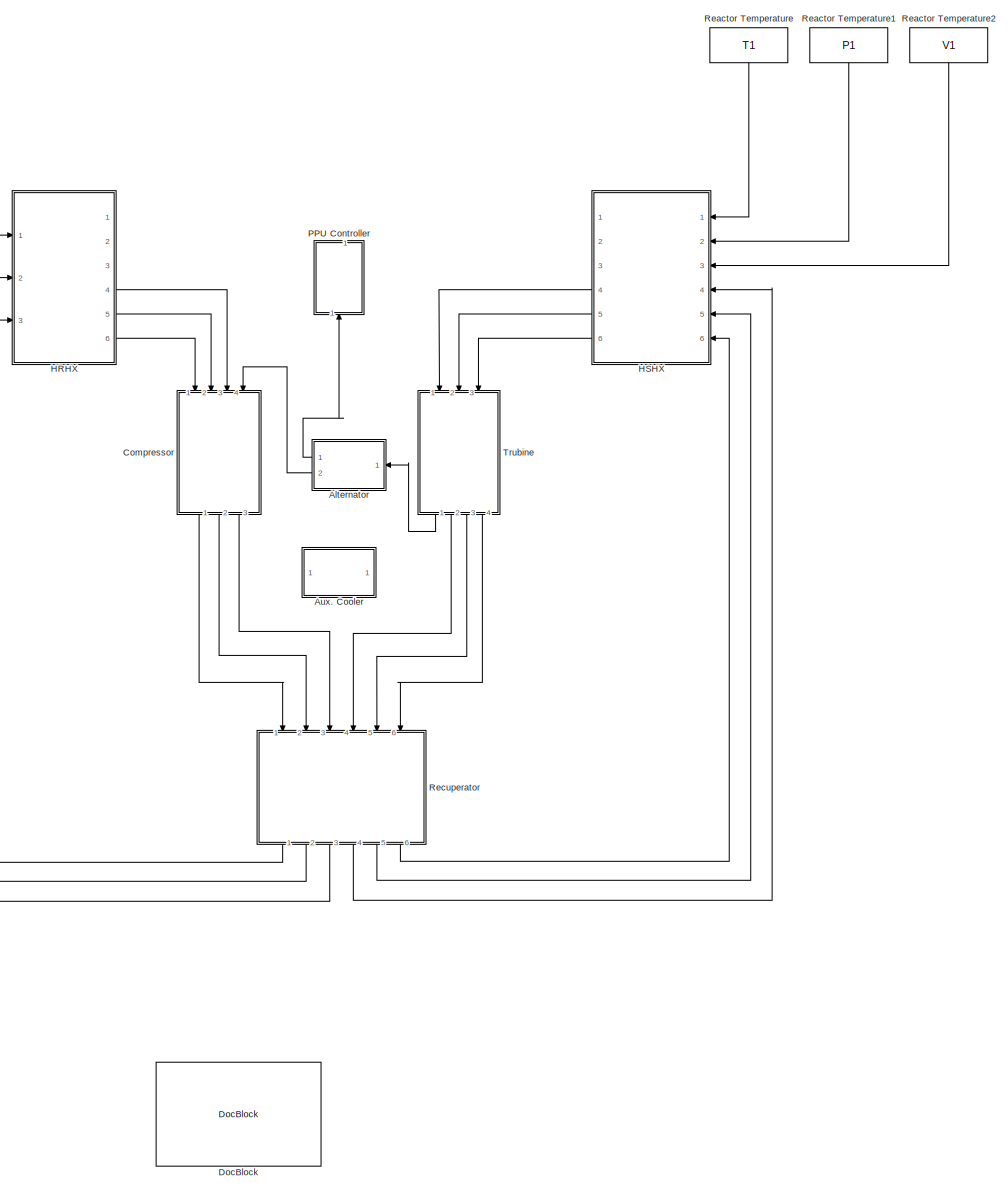
[diagram: root canvas - part 1/1, most of the canvas]
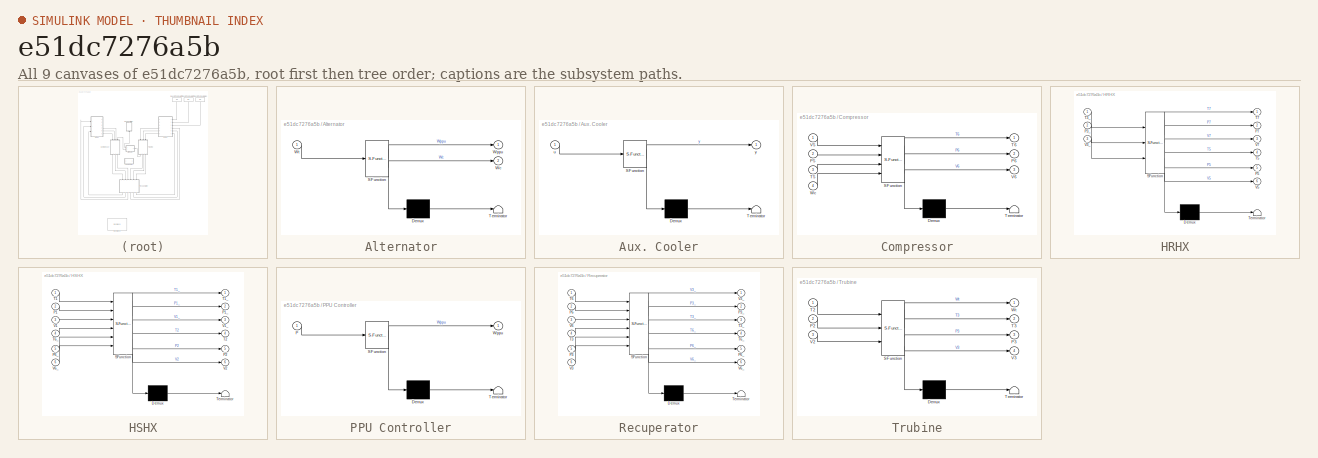
[diagram: thumbnail index - all 9 canvases of the model, root first then tree order]
MODEL slx_e51dc7276a5b
KIND model
CONFIG AbsTol = auto
CONFIG EnableMultiTasking = off
CONFIG FixedStep = auto
CONFIG MaxStep = auto
CONFIG MinStep = auto
CONFIG RelTol = 1e-3
CONFIG SampleTimeConstraint = Unconstrained
CONFIG Solver = VariableStepAuto
CONFIG SolverName = VariableStepAuto
CONFIG StartTime = 0.0
CONFIG StopTime = 10.0
BLOCK [SubSystem] Alternator
  ErrorFcn = Stateflow.Translate.translate
  PermitHierarchicalResolution = ExplicitOnly
  Ports = [1, 2]
  RequestExecContextInheritance = off
  SFBlockType = MATLAB Function
  TreatAsAtomicUnit = on
BLOCK [Demux] Alternator/ Demux 
  Outputs = 1
  Ports = [1, 1]
BLOCK [S-Function] Alternator/ SFunction 
  EnableBusSupport = on
  FunctionName = sf_sfun
  PortCounts = [1 3]
  Ports = [1, 3]
  SFcnIsStateOwnerBlock = off
  SFunctionDeploymentMode = off
  Tag = Stateflow S-Function 3
BLOCK [Terminator] Alternator/ Terminator 
BLOCK [Outport] Alternator/Wc
  IconDisplay = Port number
  Port = 2
BLOCK [Outport] Alternator/Wppu
  IconDisplay = Port number
BLOCK [Inport] Alternator/Wt
  IconDisplay = Port number
BLOCK [SubSystem] Aux. Cooler
  ErrorFcn = Stateflow.Translate.translate
  PermitHierarchicalResolution = ExplicitOnly
  Ports = [1, 1]
  RequestExecContextInheritance = off
  SFBlockType = MATLAB Function
  TreatAsAtomicUnit = on
BLOCK [Demux] Aux. Cooler/ Demux 
  Outputs = 1
  Ports = [1, 1]
BLOCK [S-Function] Aux. Cooler/ SFunction 
  EnableBusSupport = on
  FunctionName = sf_sfun
  PortCounts = [1 2]
  Ports = [1, 2]
  SFcnIsStateOwnerBlock = off
  SFunctionDeploymentMode = off
  Tag = Stateflow S-Function 4
BLOCK [Terminator] Aux. Cooler/ Terminator 
BLOCK [Inport] Aux. Cooler/u
  IconDisplay = Port number
BLOCK [Outport] Aux. Cooler/y
  IconDisplay = Port number
BLOCK [SubSystem] Compressor
  ErrorFcn = Stateflow.Translate.translate
  PermitHierarchicalResolution = ExplicitOnly
  Ports = [4, 3]
  RequestExecContextInheritance = off
  SFBlockType = MATLAB Function
  TreatAsAtomicUnit = on
BLOCK [Demux] Compressor/ Demux 
  Outputs = 1
  Ports = [1, 1]
BLOCK [S-Function] Compressor/ SFunction 
  EnableBusSupport = on
  FunctionName = sf_sfun
  PortCounts = [4 4]
  Ports = [4, 4]
  SFcnIsStateOwnerBlock = off
  SFunctionDeploymentMode = off
  Tag = Stateflow S-Function 1
BLOCK [Terminator] Compressor/ Terminator 
BLOCK [Inport] Compressor/P5
  IconDisplay = Port number
  Port = 2
BLOCK [Outport] Compressor/P6
  IconDisplay = Port number
  Port = 2
BLOCK [Inport] Compressor/T5
  IconDisplay = Port number
  Port = 3
BLOCK [Outport] Compressor/T6
  IconDisplay = Port number
BLOCK [Inport] Compressor/V5
  IconDisplay = Port number
BLOCK [Outport] Compressor/V6
  IconDisplay = Port number
  Port = 3
BLOCK [Inport] Compressor/Wc
  IconDisplay = Port number
  Port = 4
BLOCK [Reference] DocBlock  REF=simulink/Model-Wide
Utilities/DocBlock
  Description = HSHX : 1 (8) --> 2\nTurbine : 2 --> 3\nRecuperator : 3 (7) --> 4 (8)\nHRHX : 4 --> 5 (6)\nCompressor : 5 --> 7
  Ports = []
  SourceBlock = simulink/Model-Wide\nUtilities/DocBlock
  SourceProductBaseCode = SL
  SourceProductName = Simulink
  SourceType = DocBlock
  Tag = HSHX : 1 (8) --> 2\nTurbine : 2 --> 3\nRecuperator : 3 (7) --> 4 (8)\nHRHX : 4 --> 5 (6)\nCompressor : 5 --> 7
  UserDataPersistent = on
BLOCK [SubSystem] HRHX
  ErrorFcn = Stateflow.Translate.translate
  PermitHierarchicalResolution = ExplicitOnly
  Ports = [3, 6]
  RequestExecContextInheritance = off
  SFBlockType = MATLAB Function
  TreatAsAtomicUnit = on
BLOCK [Demux] HRHX/ Demux 
  Outputs = 1
  Ports = [1, 1]
BLOCK [S-Function] HRHX/ SFunction 
  EnableBusSupport = on
  FunctionName = sf_sfun
  PortCounts = [3 7]
  Ports = [3, 7]
  SFcnIsStateOwnerBlock = off
  SFunctionDeploymentMode = off
  Tag = Stateflow S-Function 6
BLOCK [Terminator] HRHX/ Terminator 
BLOCK [Inport] HRHX/P3_
  IconDisplay = Port number
  Port = 2
BLOCK [Outport] HRHX/P5
  IconDisplay = Port number
  Port = 5
BLOCK [Outport] HRHX/P7
  IconDisplay = Port number
  Port = 2
BLOCK [Inport] HRHX/T3_
  IconDisplay = Port number
BLOCK [Outport] HRHX/T5
  IconDisplay = Port number
  Port = 4
BLOCK [Outport] HRHX/T7
  IconDisplay = Port number
BLOCK [Inport] HRHX/V3_
  IconDisplay = Port number
  Port = 3
BLOCK [Outport] HRHX/V5
  IconDisplay = Port number
  Port = 6
BLOCK [Outport] HRHX/V7
  IconDisplay = Port number
  Port = 3
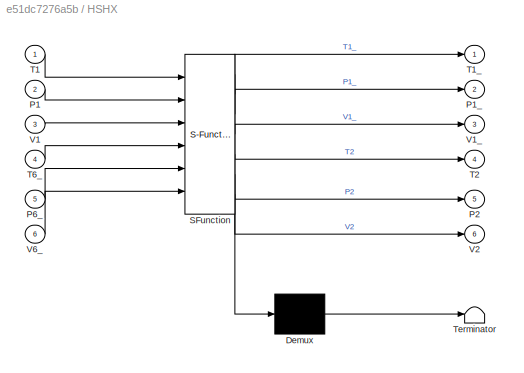
BLOCK [SubSystem] HSHX
  ErrorFcn = Stateflow.Translate.translate
  PermitHierarchicalResolution = ExplicitOnly
  Ports = [6, 6]
  RequestExecContextInheritance = off
  SFBlockType = MATLAB Function
  TreatAsAtomicUnit = on
BLOCK [Demux] HSHX/ Demux 
  Outputs = 1
  Ports = [1, 1]
BLOCK [S-Function] HSHX/ SFunction 
  EnableBusSupport = on
  FunctionName = sf_sfun
  PortCounts = [6 7]
  Ports = [6, 7]
  SFcnIsStateOwnerBlock = off
  SFunctionDeploymentMode = off
  Tag = Stateflow S-Function 7
BLOCK [Terminator] HSHX/ Terminator 
BLOCK [Inport] HSHX/P1
  IconDisplay = Port number
  Port = 2
BLOCK [Outport] HSHX/P1_
  IconDisplay = Port number
  Port = 2
BLOCK [Outport] HSHX/P2
  IconDisplay = Port number
  Port = 5
BLOCK [Inport] HSHX/P6_
  IconDisplay = Port number
  Port = 5
BLOCK [Inport] HSHX/T1
  IconDisplay = Port number
BLOCK [Outport] HSHX/T1_
  IconDisplay = Port number
BLOCK [Outport] HSHX/T2
  IconDisplay = Port number
  Port = 4
BLOCK [Inport] HSHX/T6_
  IconDisplay = Port number
  Port = 4
BLOCK [Inport] HSHX/V1
  IconDisplay = Port number
  Port = 3
BLOCK [Outport] HSHX/V1_
  IconDisplay = Port number
  Port = 3
BLOCK [Outport] HSHX/V2
  IconDisplay = Port number
  Port = 6
BLOCK [Inport] HSHX/V6_
  IconDisplay = Port number
  Port = 6
BLOCK [SubSystem] PPU Controller
  ErrorFcn = Stateflow.Translate.translate
  PermitHierarchicalResolution = ExplicitOnly
  Ports = [1, 1]
  RequestExecContextInheritance = off
  SFBlockType = MATLAB Function
  TreatAsAtomicUnit = on
BLOCK [Demux] PPU Controller/ Demux 
  Outputs = 1
  Ports = [1, 1]
BLOCK [S-Function] PPU Controller/ SFunction 
  EnableBusSupport = on
  FunctionName = sf_sfun
  PortCounts = [1 2]
  Ports = [1, 2]
  SFcnIsStateOwnerBlock = off
  SFunctionDeploymentMode = off
  Tag = Stateflow S-Function 8
BLOCK [Terminator] PPU Controller/ Terminator 
BLOCK [Inport] PPU Controller/P
  IconDisplay = Port number
BLOCK [Outport] PPU Controller/Wppu
  IconDisplay = Port number
BLOCK [Constant] Reactor Temperature
  Value = T1
BLOCK [Constant] Reactor Temperature1
  Value = P1
BLOCK [Constant] Reactor Temperature2
  Value = V1
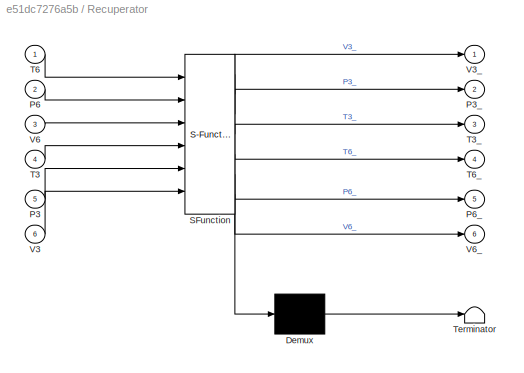
BLOCK [SubSystem] Recuperator
  ErrorFcn = Stateflow.Translate.translate
  PermitHierarchicalResolution = ExplicitOnly
  Ports = [6, 6]
  RequestExecContextInheritance = off
  SFBlockType = MATLAB Function
  TreatAsAtomicUnit = on
BLOCK [Demux] Recuperator/ Demux 
  Outputs = 1
  Ports = [1, 1]
BLOCK [S-Function] Recuperator/ SFunction 
  EnableBusSupport = on
  FunctionName = sf_sfun
  PortCounts = [6 7]
  Ports = [6, 7]
  SFcnIsStateOwnerBlock = off
  SFunctionDeploymentMode = off
  Tag = Stateflow S-Function 5
BLOCK [Terminator] Recuperator/ Terminator 
BLOCK [Inport] Recuperator/P3
  IconDisplay = Port number
  Port = 5
BLOCK [Outport] Recuperator/P3_
  IconDisplay = Port number
  Port = 2
BLOCK [Inport] Recuperator/P6
  IconDisplay = Port number
  Port = 2
BLOCK [Outport] Recuperator/P6_
  IconDisplay = Port number
  Port = 5
BLOCK [Inport] Recuperator/T3
  IconDisplay = Port number
  Port = 4
BLOCK [Outport] Recuperator/T3_
  IconDisplay = Port number
  Port = 3
BLOCK [Inport] Recuperator/T6
  IconDisplay = Port number
BLOCK [Outport] Recuperator/T6_
  IconDisplay = Port number
  Port = 4
BLOCK [Inport] Recuperator/V3
  IconDisplay = Port number
  Port = 6
BLOCK [Outport] Recuperator/V3_
  IconDisplay = Port number
BLOCK [Inport] Recuperator/V6
  IconDisplay = Port number
  Port = 3
BLOCK [Outport] Recuperator/V6_
  IconDisplay = Port number
  Port = 6
BLOCK [SubSystem] Trubine
  ErrorFcn = Stateflow.Translate.translate
  PermitHierarchicalResolution = ExplicitOnly
  Ports = [3, 4]
  RequestExecContextInheritance = off
  SFBlockType = MATLAB Function
  TreatAsAtomicUnit = on
BLOCK [Demux] Trubine/ Demux 
  Outputs = 1
  Ports = [1, 1]
BLOCK [S-Function] Trubine/ SFunction 
  EnableBusSupport = on
  FunctionName = sf_sfun
  PortCounts = [3 5]
  Ports = [3, 5]
  SFcnIsStateOwnerBlock = off
  SFunctionDeploymentMode = off
  Tag = Stateflow S-Function 2
BLOCK [Terminator] Trubine/ Terminator 
BLOCK [Inport] Trubine/P2
  IconDisplay = Port number
  Port = 2
BLOCK [Outport] Trubine/P3
  IconDisplay = Port number
  Port = 3
BLOCK [Inport] Trubine/T2
  IconDisplay = Port number
BLOCK [Outport] Trubine/T3
  IconDisplay = Port number
  Port = 2
BLOCK [Inport] Trubine/V2
  IconDisplay = Port number
  Port = 3
BLOCK [Outport] Trubine/V3
  IconDisplay = Port number
  Port = 4
BLOCK [Outport] Trubine/Wt
  IconDisplay = Port number
LINE Alternator:1 -> PPU Controller:1
LINE Alternator:2 -> Compressor:4
LINE Compressor:1 -> Recuperator:1
LINE Compressor:2 -> Recuperator:2
LINE Compressor:3 -> Recuperator:3
LINE HRHX:4 -> Compressor:3
LINE HRHX:5 -> Compressor:2
LINE HRHX:6 -> Compressor:1
LINE HSHX:4 -> Trubine:1
LINE HSHX:5 -> Trubine:2
LINE HSHX:6 -> Trubine:3
LINE Reactor Temperature1:1 -> HSHX:2
LINE Reactor Temperature2:1 -> HSHX:3
LINE Reactor Temperature:1 -> HSHX:1
LINE Recuperator:1 -> HRHX:3
LINE Recuperator:2 -> HRHX:2
LINE Recuperator:3 -> HRHX:1
LINE Recuperator:4 -> HSHX:4
LINE Recuperator:5 -> HSHX:5
LINE Recuperator:6 -> HSHX:6
LINE Trubine:1 -> Alternator:1
LINE Trubine:2 -> Recuperator:4
LINE Trubine:3 -> Recuperator:5
LINE Trubine:4 -> Recuperator:6
CHART Compressor states=1 transitions=1
  STATE_LABEL 'eML_blk_kernel()'
  STATE_LABEL 'SCRIPT:\nfunction [T6,P6,V6] = fcn(V5,P5,T5,Wc)\n\n;\n'
CHART Trubine states=1 transitions=1
  STATE_LABEL 'eML_blk_kernel()'
  STATE_LABEL 'SCRIPT:\nfunction [Wt,T3,P3,V3] = fcn(T2,P2,V2)\n%HeXe Properties\n\nR = 558; %J/kg-K\nrho = 14.229; %kg/m^3\n\n;\n'
CHART Alternator states=1 transitions=1
  STATE_LABEL 'eML_blk_kernel()'
  STATE_LABEL 'SCRIPT:\nfunction [Wppu,Wc] = fcn(Wt)\n\n;\n'
CHART Aux. Cooler states=1 transitions=1
  STATE_LABEL 'eML_blk_kernel()'
  STATE_LABEL 'SCRIPT:\nfunction y = fcn(u)\n\ny = u;\n'
CHART Recuperator states=1 transitions=1
  STATE_LABEL 'eML_blk_kernel()'
  STATE_LABEL 'SCRIPT:\nfunction [V3_,P3_,T3_,T6_,P6_,V6_] = fcn(T6,P6,V6,T3,P3,V3)\n\n;\n'
CHART HRHX states=1 transitions=1
  STATE_LABEL 'eML_blk_kernel()'
  STATE_LABEL 'SCRIPT:\nfunction [T7,P7,V7,T5,P5,V5] = fcn(T3_,P3_,V3_)\n\n;\n'
CHART HSHX states=1 transitions=1
  STATE_LABEL 'eML_blk_kernel()'
  STATE_LABEL 'SCRIPT:\nfunction [T1_,P1_,V1_,T2,P2,V2] = fcn(T1,P1,V1,T6_,P6_,V6_)\n\n%T1 is temperature of flow coming from reactor\n\n\n;\n'
CHART PPU Controller states=1 transitions=1
  STATE_LABEL 'eML_blk_kernel()'
  STATE_LABEL 'SCRIPT:\nfunction Wppu = fcn(P)\n\n;\n'
